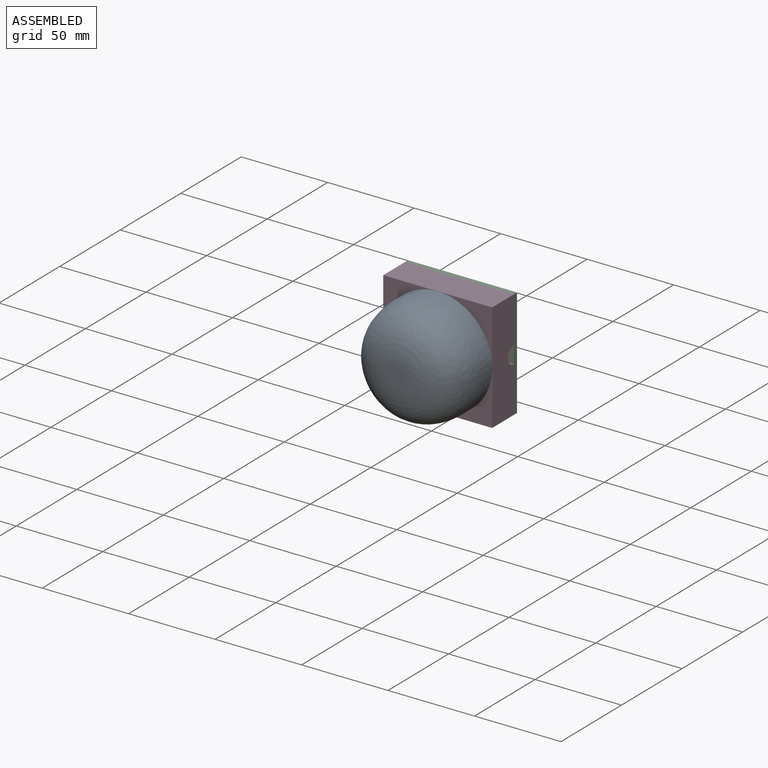
[diagram: assembled view]
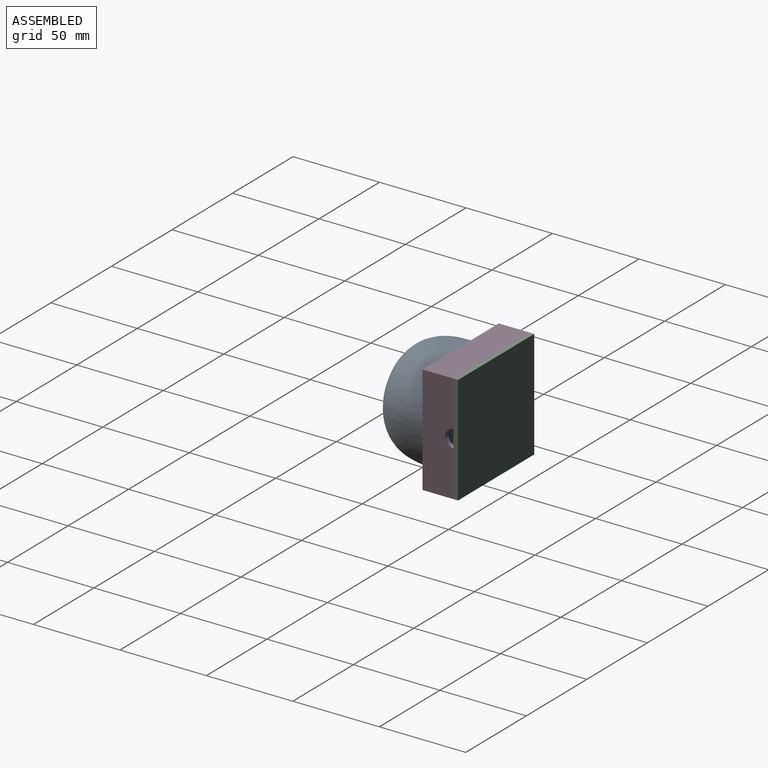
[diagram: assembled view, second angle]
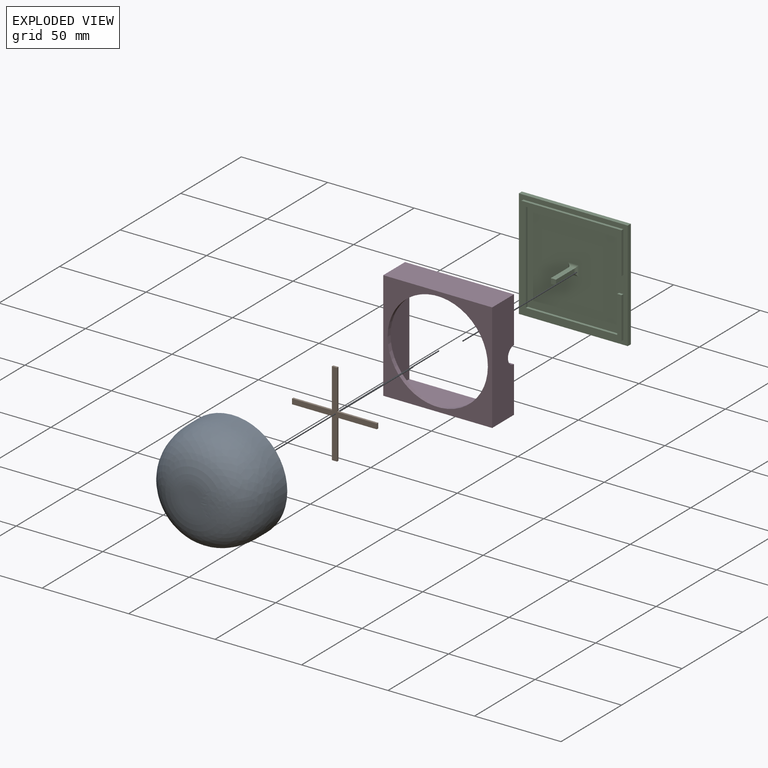
[diagram: exploded view]
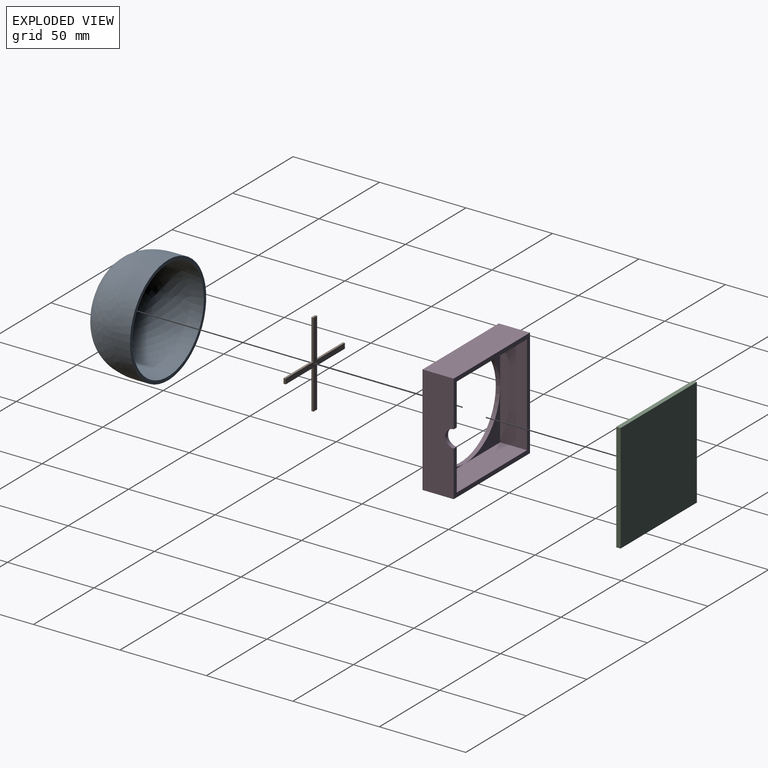
[diagram: exploded view, second angle]
ASSEMBLY  parts=4 mates=3
PART A: 7 faces, bbox 67x67x38 mm
  f0: cylinder r=31.5mm len=63mm, axis (0,0,-1), area 1425.5mm2, adj f2,f3
  f1: plane 9.41x9.41mm, normal (0,0,1), area 69.5mm2, adj f3
  f2: plane 63x63mm, normal (0,0,-1), area 383.3mm2, adj f0,f4
  f3: bspline ~63x63mm, area 6107.7mm2, adj f0,f1
  f4: cylinder r=29.5mm len=59mm, axis (0,0,-1), area 1335mm2, adj f2,f6
  f5: plane 9.4x9.4mm, normal (0,0,-1), area 69.5mm2, adj f6
  f6: offset ~67x67mm, area 5342.7mm2, adj f4,f5
PART B: 14 faces, bbox 49x49x1.2 mm
  f0: plane 3x1.2mm, normal (0,1,0), area 3.6mm2, adj f1,f11,f12,f13
  f1: plane 23x1.2mm, normal (-1,0,0), area 27.6mm2, adj f0,f2,f12,f13
  f2: plane 23x1.2mm, normal (0,1,0), area 27.6mm2, adj f1,f3,f12,f13
  f3: plane 3x1.2mm, normal (-1,0,0), area 3.6mm2, adj f2,f4,f12,f13
  f4: plane 23x1.2mm, normal (0,-1,0), area 27.6mm2, adj f3,f5,f12,f13
  f5: plane 23x1.2mm, normal (-1,0,0), area 27.6mm2, adj f4,f6,f12,f13
  f6: plane 3x1.2mm, normal (0,-1,0), area 3.6mm2, adj f5,f7,f12,f13
  f7: plane 23x1.2mm, normal (1,0,0), area 27.6mm2, adj f6,f8,f12,f13
  f8: plane 23x1.2mm, normal (0,-1,0), area 27.6mm2, adj f7,f9,f12,f13
  f9: plane 3x1.2mm, normal (1,0,0), area 3.6mm2, adj f8,f10,f12,f13
  f10: plane 23x1.2mm, normal (0,1,0), area 27.6mm2, adj f9,f11,f12,f13
  f11: plane 23x1.2mm, normal (1,0,0), area 27.6mm2, adj f0,f10,f12,f13
  f12: plane 49x49mm, normal (0,0,1), area 285mm2, adj f0,f1,f2,f3,f4,f5,f6,f7
  f13: plane 49x49mm, normal (0,0,-1), area 285mm2, adj f0,f1,f2,f3,f4,f5,f6,f7
PART C: 28 faces, bbox 63x63x19 mm
  f0: plane 23.92x1.5mm, normal (0,-1,0), area 35.9mm2, adj f2,f14,f16,f18
  f1: plane 21.42x1.5mm, normal (0,1,0), area 32.1mm2, adj f2,f10,f16,f18
  f2: plane 57.84x57.84mm, normal (0,0,1), area 528.4mm2, adj f0,f1,f3,f4,f10,f11,f12,f13
  f3: plane 23.92x1.5mm, normal (0,-1,0), area 35.9mm2, adj f2,f15,f16,f17
  f4: plane 21.42x1.5mm, normal (0,1,0), area 32.1mm2, adj f2,f12,f16,f17
  f5: plane 63x2.5mm, normal (0,1,0), area 157.5mm2, adj f6,f8,f9,f16
  f6: plane 63x2.5mm, normal (-1,0,0), area 157.5mm2, adj f5,f7,f9,f16
  f7: plane 63x2.5mm, normal (0,-1,0), area 157.5mm2, adj f6,f8,f9,f16
  f8: plane 63x2.5mm, normal (1,0,0), area 157.5mm2, adj f5,f7,f9,f16
  f9: plane 63x63mm, normal (0,0,-1), area 3969mm2, adj f5,f6,f7,f8
  f10: plane 52.84x1.5mm, normal (1,0,0), area 79.3mm2, adj f1,f2,f11,f16
  f11: plane 52.84x1.5mm, normal (0,-1,0), area 79.3mm2, adj f2,f10,f12,f16
  f12: plane 52.84x1.5mm, normal (-1,0,0), area 79.3mm2, adj f2,f4,f11,f16
  f13: plane 57.84x1.5mm, normal (0,1,0), area 86.8mm2, adj f2,f14,f15,f16
  f14: plane 57.84x1.5mm, normal (-1,0,0), area 86.8mm2, adj f0,f2,f13,f16
  f15: plane 57.84x1.5mm, normal (1,0,0), area 86.8mm2, adj f2,f3,f13,f16
  f16: plane 63x63mm, normal (0,0,1), area 3402.2mm2, adj f0,f1,f3,f4,f5,f6,f7,f8
  f17: plane 2.5x1.5mm, normal (-1,0,0), area 3.8mm2, adj f2,f3,f4,f16
  f18: plane 2.5x1.5mm, normal (1,0,0), area 3.8mm2, adj f0,f1,f2,f16
  f19: plane 14.9x3mm, normal (0,1,0), area 44.7mm2, adj f20,f22,f23,f24
  f20: plane 14.9x3mm, normal (-1,0,0), area 44.7mm2, adj f19,f21,f23,f25
  f21: plane 14.9x3mm, normal (0,-1,0), area 44.7mm2, adj f20,f22,f23,f27
  f22: plane 14.9x3mm, normal (1,0,0), area 44.7mm2, adj f19,f21,f23,f26
  f23: plane 3x3mm, normal (0,0,1), area 9mm2, adj f19,f20,f21,f22
  f24: cylinder r=1.6mm len=6.2mm, axis (-1,0,0), area 10.5mm2, adj f16,f19,f25,f26
  f25: cylinder r=1.6mm len=6.2mm, axis (0,-1,0), area 10.5mm2, adj f16,f20,f24,f27
  f26: cylinder r=1.6mm len=6.2mm, axis (0,1,0), area 10.5mm2, adj f16,f22,f24,f27
  f27: cylinder r=1.6mm len=6.2mm, axis (1,0,0), area 10.5mm2, adj f16,f21,f25,f26
PART D: 16 faces, bbox 63x63x18 mm
  f0: plane 58x15.5mm, normal (-1,0,0), area 859.7mm2, adj f1,f4,f10,f12,f13,f15
  f1: plane 29x29mm, normal (0,0,-1), area 180.5mm2, adj f0,f12,f14
  f2: plane 29x29mm, normal (0,0,-1), area 180.5mm2, adj f11,f12,f14
  f3: plane 29x29mm, normal (0,0,-1), area 180.5mm2, adj f10,f11,f14
  f4: plane 63x63mm, normal (0,0,-1), area 580mm2, adj f0,f5,f6,f7,f8,f10,f11,f12
  f5: plane 63x18mm, normal (0,1,0), area 1134mm2, adj f4,f6,f8,f9
  f6: plane 63x18mm, normal (-1,0,0), area 1134mm2, adj f4,f5,f7,f9
  f7: plane 63x18mm, normal (0,-1,0), area 1134mm2, adj f4,f6,f8,f9
  f8: plane 63x18mm, normal (1,0,0), area 1094.7mm2, adj f4,f5,f7,f9,f15
  f9: plane 63x63mm, normal (0,0,1), area 1326.9mm2, adj f5,f6,f7,f8,f14
  f10: plane 58x15.5mm, normal (0,-1,0), area 899mm2, adj f0,f3,f4,f11,f13
  f11: plane 58x15.5mm, normal (1,0,0), area 899mm2, adj f2,f3,f4,f10,f12
  f12: plane 58x15.5mm, normal (0,1,0), area 899mm2, adj f0,f1,f2,f4,f11
  f13: plane 29x29mm, normal (0,0,-1), area 180.5mm2, adj f0,f10,f14
  f14: cylinder r=29mm len=58mm, axis (0,0,-1), area 455.5mm2, adj f1,f2,f3,f9,f13
  f15: cylinder r=5mm len=10mm, axis (1,0,0), area 39.3mm2, adj f0,f4,f8
PLACE A rot(axis=(1,0,0),90deg) t=(104.08,84.5,-20.71)mm
PLACE B rot(axis=(1,0,0),90deg) t=(102.9,68,-17.17)mm
PLACE C rot(axis=(0.58,-0.58,0.58),120deg) t=(92.12,87,-18.67)mm
PLACE D rot(axis=(1,0,0),90deg) t=(104.08,84.5,-20.71)mm
MATE fastened D.f4 <-> C.f16  axis (0,1,0) through (60.62,84.5,-18.67)mm
MATE fastened A.f0 <-> D.f14  axis (0,1,0) through (92.12,66.5,-18.67)mm
MATE fastened C.f23 <-> B.f13  axis (0,-1,0) through (92.12,68,-18.67)mm
